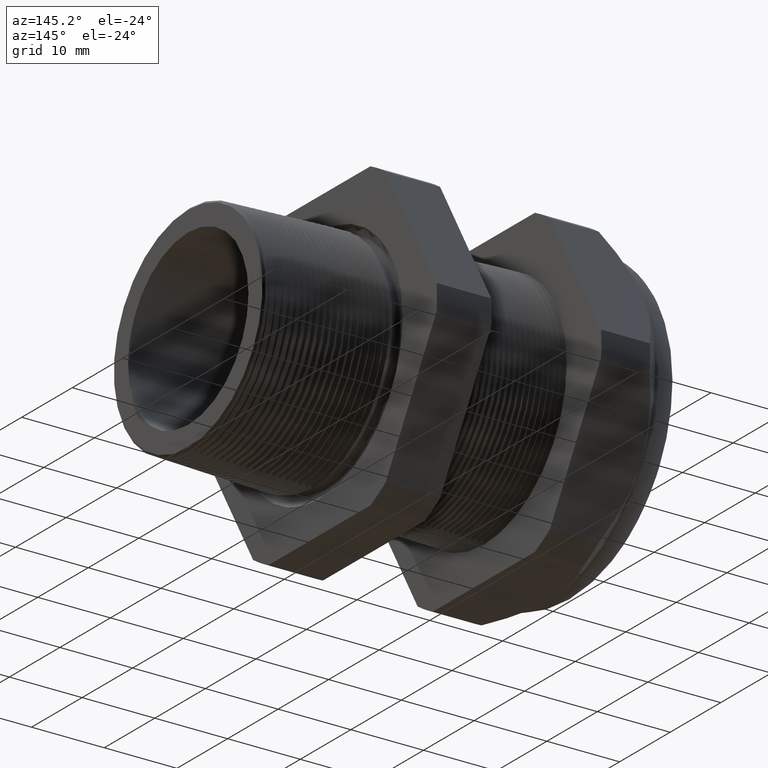
[diagram: clean part render]
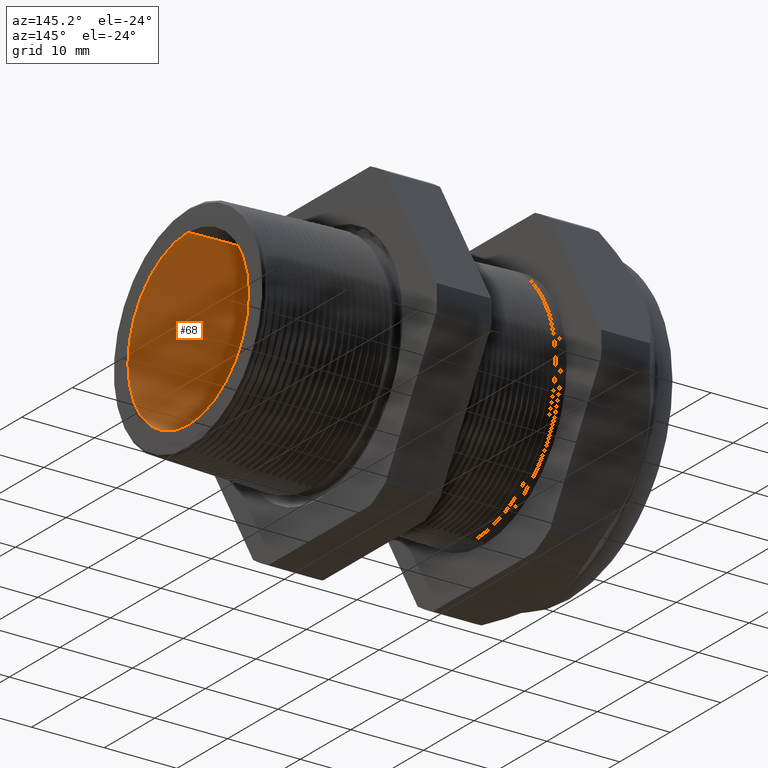
[diagram: same view with one face highlighted and labeled with its STEP entity id]
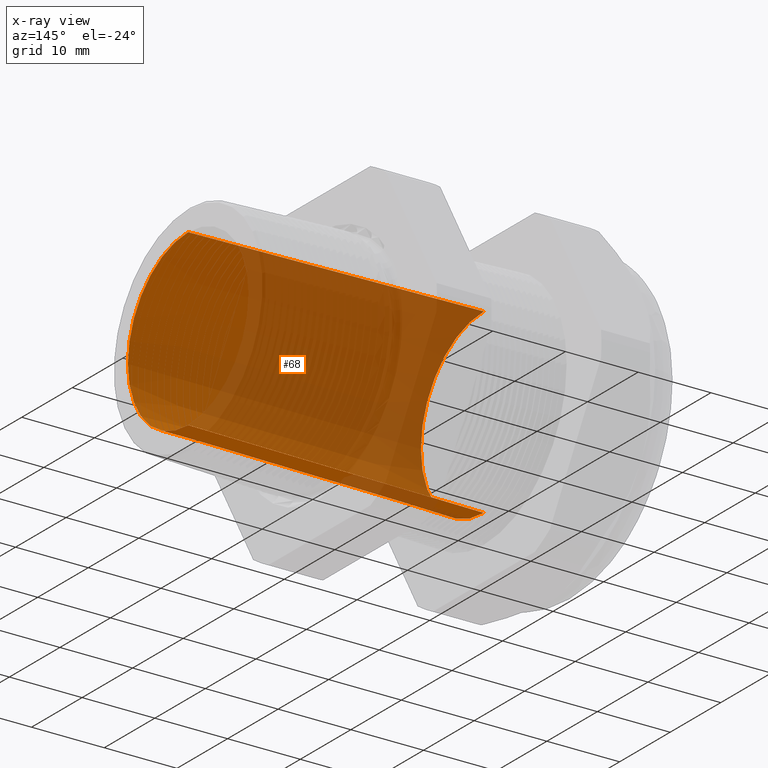
[diagram: x-ray of the same camera — body ghosted, the highlighted face saturated]
A machine part, auxiliary view. The second image highlights one B-rep face of the part: STEP entity #68.
The next image is the same camera in x-ray: the body ghosted, the highlighted face saturated — about 67% of this face is hidden behind the body in this view.
In plain terms, the highlighted conical surface has half-angle 0.748 deg.
Its self-contained STEP definition (entity closure, byte-faithful):
#65 = VERTEX_POINT ( 'NONE', #2439 ) ;
#68 = ADVANCED_FACE ( 'NONE', ( #2437 ), #2436, .F. ) ;
#69 = EDGE_LOOP ( 'NONE', ( #70, #613, #619, #108 ) ) ;
#70 = ORIENTED_EDGE ( 'NONE', *, *, #72, .T. ) ;
#72 = EDGE_CURVE ( 'NONE', #65, #73, #2492, .T. ) ;
#73 = VERTEX_POINT ( 'NONE', #2487 ) ;
#106 = VERTEX_POINT ( 'NONE', #2544 ) ;
#108 = ORIENTED_EDGE ( 'NONE', *, *, #113, .F. ) ;
#113 = EDGE_CURVE ( 'NONE', #65, #106, #2595, .T. ) ;
#607 = EDGE_CURVE ( 'NONE', #106, #617, #3536, .T. ) ;
#613 = ORIENTED_EDGE ( 'NONE', *, *, #615, .T. ) ;
#615 = EDGE_CURVE ( 'NONE', #73, #617, #3586, .T. ) ;
#617 = VERTEX_POINT ( 'NONE', #3576 ) ;
#619 = ORIENTED_EDGE ( 'NONE', *, *, #607, .F. ) ;
#2436 = CONICAL_SURFACE ( 'NONE', #2500, 0.4899999999999999900, 0.01304933399369770900 ) ;
#2437 = FACE_OUTER_BOUND ( 'NONE', #69, .T. ) ;
#2439 = CARTESIAN_POINT ( 'NONE',  ( 0.3999999999999999700, 0.0000000000000000000, 0.4691157701456585800 ) ) ;
#2487 = CARTESIAN_POINT ( 'NONE',  ( 0.3999999999999999700, 5.872890289603146600E-017, -0.4691157701456585800 ) ) ;
#2488 = DIRECTION ( 'NONE',  ( 0.0000000000000000000, 0.0000000000000000000, -1.000000000000000000 ) ) ;
#2489 = DIRECTION ( 'NONE',  ( 1.000000000000000000, 0.0000000000000000000, 0.0000000000000000000 ) ) ;
#2490 = CARTESIAN_POINT ( 'NONE',  ( 0.3999999999999999700, 0.0000000000000000000, 0.0000000000000000000 ) ) ;
#2491 = AXIS2_PLACEMENT_3D ( 'NONE', #2490, #2489, #2488 ) ;
#2492 = CIRCLE ( 'NONE', #2491, 0.4691157701456585800 ) ;
#2497 = DIRECTION ( 'NONE',  ( 0.0000000000000000000, 0.0000000000000000000, 1.000000000000000000 ) ) ;
#2498 = DIRECTION ( 'NONE',  ( -1.000000000000000000, 0.0000000000000000000, 0.0000000000000000000 ) ) ;
#2499 = CARTESIAN_POINT ( 'NONE',  ( -1.200314960629921300, 0.0000000000000000000, 0.0000000000000000000 ) ) ;
#2500 = AXIS2_PLACEMENT_3D ( 'NONE', #2499, #2498, #2497 ) ;
#2544 = CARTESIAN_POINT ( 'NONE',  ( -1.200314960629921300, 6.000769315822029800E-017, 0.4899999999999999900 ) ) ;
#2592 = DIRECTION ( 'NONE',  ( -0.9999148586493628000, 0.0000000000000000000, 0.01304896364562183700 ) ) ;
#2593 = VECTOR ( 'NONE', #2592, 39.37007874015748100 ) ;
#2594 = CARTESIAN_POINT ( 'NONE',  ( -1.200314960629921300, 0.0000000000000000000, 0.4899999999999999900 ) ) ;
#2595 = LINE ( 'NONE', #2594, #2593 ) ;
#3533 = DIRECTION ( 'NONE',  ( 1.000000000000000000, 0.0000000000000000000, 0.0000000000000000000 ) ) ;
#3534 = CARTESIAN_POINT ( 'NONE',  ( -1.200314960629921300, 0.0000000000000000000, 0.0000000000000000000 ) ) ;
#3535 = AXIS2_PLACEMENT_3D ( 'NONE', #3534, #3533, #3596 ) ;
#3536 = CIRCLE ( 'NONE', #3535, 0.4899999999999999900 ) ;
#3576 = CARTESIAN_POINT ( 'NONE',  ( -1.200314960629921300, 0.0000000000000000000, -0.4899999999999999900 ) ) ;
#3583 = DIRECTION ( 'NONE',  ( -0.9999148586493628000, 1.598037156080096100E-018, -0.01304896364562183700 ) ) ;
#3584 = VECTOR ( 'NONE', #3583, 39.37007874015748100 ) ;
#3585 = CARTESIAN_POINT ( 'NONE',  ( -1.200314960629921300, 6.000769315822029800E-017, -0.4899999999999999900 ) ) ;
#3586 = LINE ( 'NONE', #3585, #3584 ) ;
#3596 = DIRECTION ( 'NONE',  ( 0.0000000000000000000, 0.0000000000000000000, -1.000000000000000000 ) ) ;